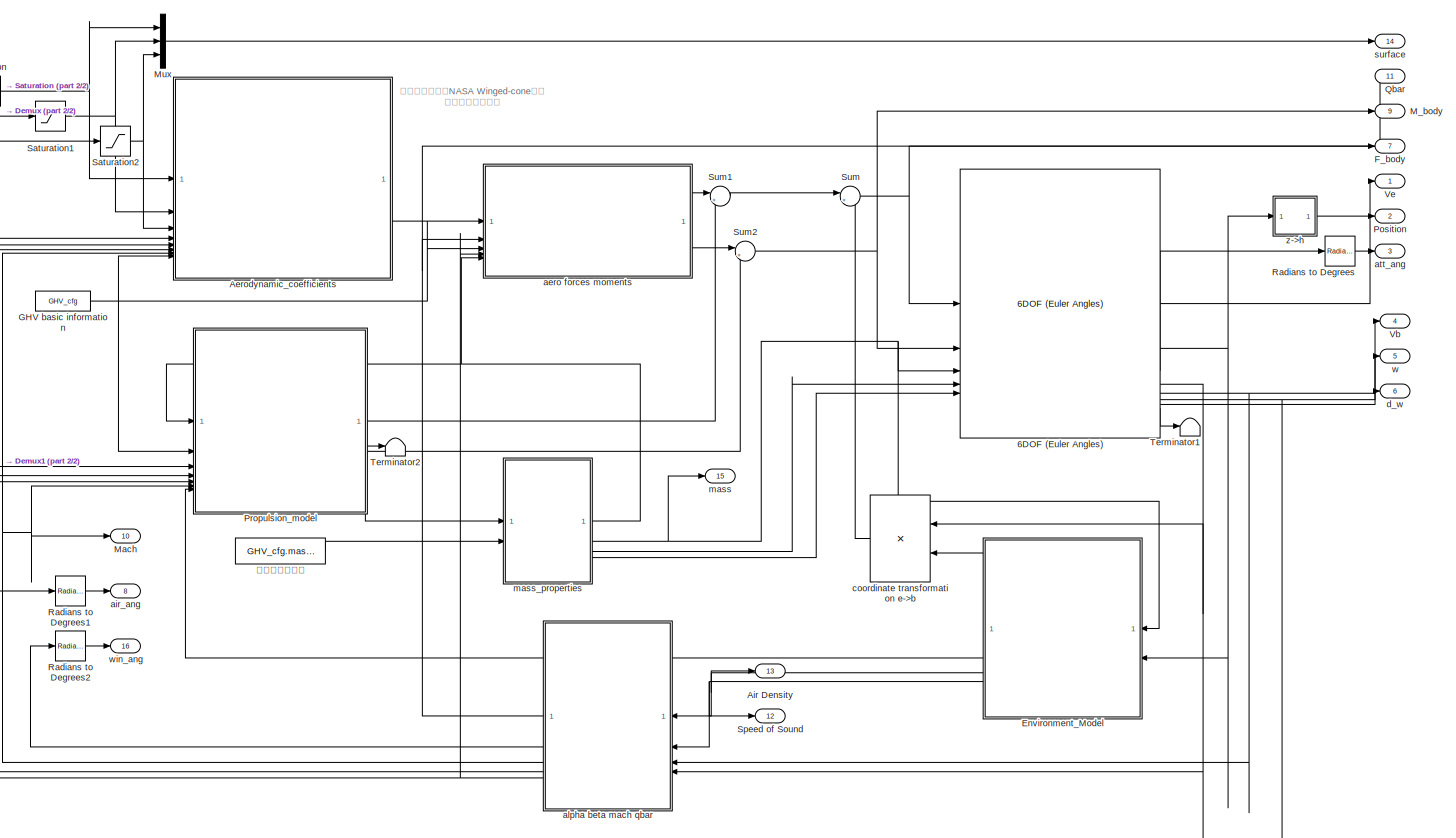
[diagram: root canvas - part 1/2, most of the canvas]
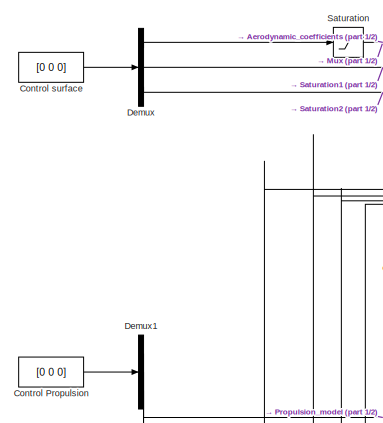
[diagram: root canvas - part 2/2, top left region]
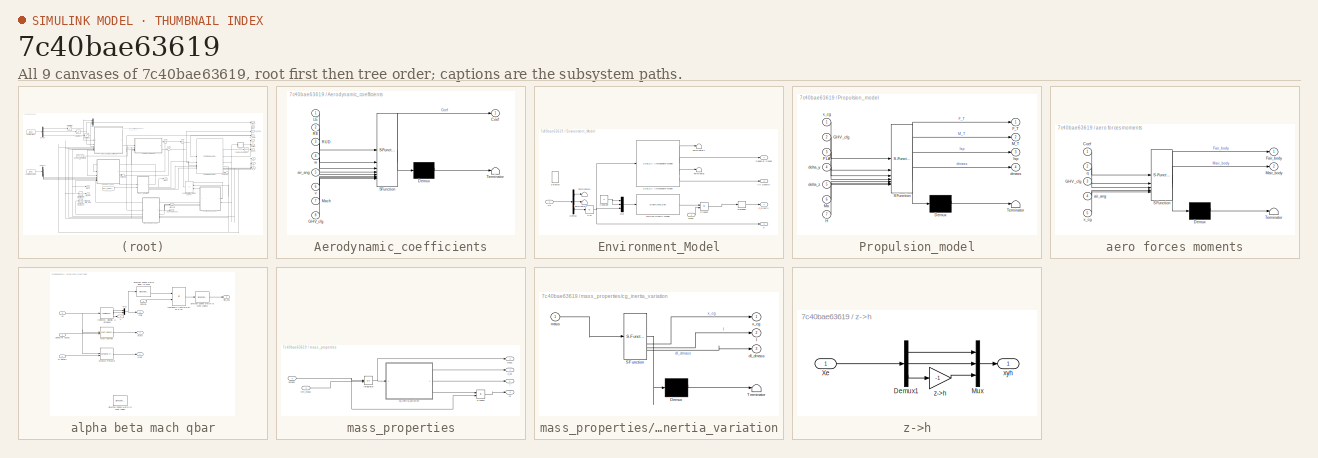
[diagram: thumbnail index - all 9 canvases of the model, root first then tree order]
MODEL slx_7c40bae63619
KIND model
CONFIG AbsTol = auto
CONFIG EnableMultiTasking = off
CONFIG FixedStep = 0.0000001
CONFIG InitFcn = run('init.m')
CONFIG MaxStep = 0.001
CONFIG MinStep = auto
CONFIG RelTol = 1e-3
CONFIG SampleTimeConstraint = Unconstrained
CONFIG SolverName = VariableStepAuto
CONFIG StartTime = 0.0
CONFIG StopTime = 10
BLOCK [Reference] 6DOF (Euler Angles)  REF=shared6dof/6DOF (Euler Angles)
  LibrarySourceBlock = aerolib6dof2/6DOF (Euler Angles)
  SourceBlock = shared6dof/6DOF (Euler Angles)
  SourceType = 6DOF EoM (Body Axis)
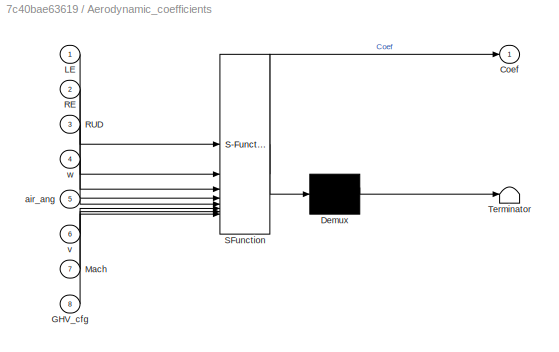
BLOCK [SubSystem] Aerodynamic_coefficients
  ErrorFcn = Stateflow.Translate.translate
  PermitHierarchicalResolution = ExplicitOnly
  SFBlockType = MATLAB Function
  TreatAsAtomicUnit = on
BLOCK [Demux] Aerodynamic_coefficients/ Demux 
  Outputs = 1
BLOCK [S-Function] Aerodynamic_coefficients/ SFunction 
  EnableBusSupport = on
  FunctionName = sf_sfun
  PortCounts = [8 2]
  SFcnIsStateOwnerBlock = off
  SFunctionDeploymentMode = off
  Tag = Stateflow S-Function 2
BLOCK [Terminator] Aerodynamic_coefficients/ Terminator 
BLOCK [Outport] Aerodynamic_coefficients/Coef
BLOCK [Inport] Aerodynamic_coefficients/GHV_cfg
  Port = 8
BLOCK [Inport] Aerodynamic_coefficients/LE
BLOCK [Inport] Aerodynamic_coefficients/Mach
  Port = 7
BLOCK [Inport] Aerodynamic_coefficients/RE
  Port = 2
BLOCK [Inport] Aerodynamic_coefficients/RUD
  Port = 3
BLOCK [Inport] Aerodynamic_coefficients/air_ang
  Port = 5
BLOCK [Inport] Aerodynamic_coefficients/v
  Port = 6
BLOCK [Inport] Aerodynamic_coefficients/w
  Port = 4
BLOCK [Outport] Air Density
  Port = 13
BLOCK [Constant] Control Propulsion
  Value = [0 0 0]
BLOCK [Constant] Control surface
  Value = [0 0 0]
BLOCK [Demux] Demux
  Outputs = 3
BLOCK [Demux] Demux1
  Outputs = 3
BLOCK [SubSystem] Environment_Model
BLOCK [Outport] Environment_Model/Air Density
  Port = 3
BLOCK [Reference] Environment_Model/COESA Atmosphere Model  REF=aerolibatmos2/COESA Atmosphere Model
  SourceBlock = aerolibatmos2/COESA Atmosphere Model
  SourceType = Atmosphere Model
BLOCK [Constant] Environment_Model/Constant
  Value = 0
BLOCK [Demux] Environment_Model/Demux
  Outputs = 3
BLOCK [Outport] Environment_Model/F_Gravity
BLOCK [Mux] Environment_Model/Mux
  DisplayOption = bar
  Inputs = 3
BLOCK [Product] Environment_Model/Product
BLOCK [Reshape] Environment_Model/Reshape
BLOCK [Selector] Environment_Model/Selector
  Commented = on
  IndexOptions = Index vector (dialog)
  Indices = [3]
  InputPortWidth = 3
  OutputSizes = 1
BLOCK [Outport] Environment_Model/Speed of Sound
  Port = 4
BLOCK [Terminator] Environment_Model/Terminator
BLOCK [Terminator] Environment_Model/Terminator1
BLOCK [Terminator] Environment_Model/Terminator2
BLOCK [Terminator] Environment_Model/Terminator3
BLOCK [GravityWGS84] Environment_Model/WGS84 Gravity Model  
  action = None
BLOCK [Inport] Environment_Model/Xe
  Port = 2
BLOCK [Outport] Environment_Model/h
  Port = 2
BLOCK [Inport] Environment_Model/mass
BLOCK [Abs] Environment_Model/z->h
  SaturateOnIntegerOverflow = off
BLOCK [Outport] F_body
  Port = 7
BLOCK [Constant] GHV basic information
  OutDataTypeStr = Bus: slBus1
  Value = GHV_cfg
  VectorParams1D = off
BLOCK [Outport] M_body
  Port = 9
BLOCK [Outport] Mach
  Port = 10
BLOCK [Mux] Mux
  DisplayOption = bar
  Inputs = 3
BLOCK [Outport] Position
  Port = 2
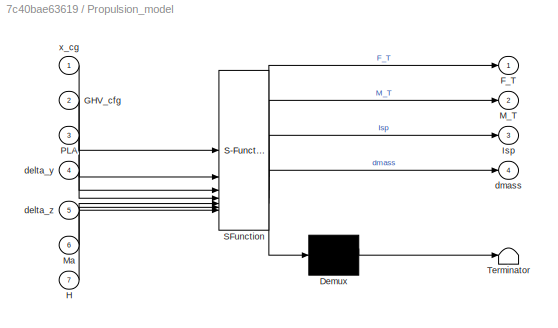
BLOCK [SubSystem] Propulsion_model
  ErrorFcn = Stateflow.Translate.translate
  PermitHierarchicalResolution = ExplicitOnly
  SFBlockType = MATLAB Function
  TreatAsAtomicUnit = on
BLOCK [Demux] Propulsion_model/ Demux 
  Outputs = 1
BLOCK [S-Function] Propulsion_model/ SFunction 
  EnableBusSupport = on
  FunctionName = sf_sfun
  PortCounts = [7 5]
  SFcnIsStateOwnerBlock = off
  SFunctionDeploymentMode = off
  Tag = Stateflow S-Function 1
BLOCK [Terminator] Propulsion_model/ Terminator 
BLOCK [Outport] Propulsion_model/F_T
BLOCK [Inport] Propulsion_model/GHV_cfg
  Port = 2
BLOCK [Inport] Propulsion_model/H
  Port = 7
BLOCK [Outport] Propulsion_model/Isp
  Port = 3
BLOCK [Outport] Propulsion_model/M_T
  Port = 2
BLOCK [Inport] Propulsion_model/Ma
  Port = 6
BLOCK [Inport] Propulsion_model/PLA
  Port = 3
BLOCK [Inport] Propulsion_model/delta_y
  Port = 4
BLOCK [Inport] Propulsion_model/delta_z
  Port = 5
BLOCK [Outport] Propulsion_model/dmass
  Port = 4
BLOCK [Inport] Propulsion_model/x_cg
BLOCK [Outport] Qbar
  Port = 11
BLOCK [Reference] Radians to Degrees  REF=simulink_extras/Transformations/Radians
to Degrees
  SourceBlock = simulink_extras/Transformations/Radians\nto Degrees
  SourceType = RadiansToDegrees
BLOCK [Reference] Radians to Degrees1  REF=simulink_extras/Transformations/Radians
to Degrees
  SourceBlock = simulink_extras/Transformations/Radians\nto Degrees
  SourceType = RadiansToDegrees
BLOCK [Reference] Radians to Degrees2  REF=simulink_extras/Transformations/Radians
to Degrees
  SourceBlock = simulink_extras/Transformations/Radians\nto Degrees
  SourceType = RadiansToDegrees
BLOCK [Saturate] Saturation
  LowerLimit = -30
  UpperLimit = 30
BLOCK [Saturate] Saturation1
  LowerLimit = -30
  UpperLimit = 30
BLOCK [Saturate] Saturation2
  LowerLimit = -30
  UpperLimit = 30
BLOCK [Outport] Speed of Sound
  Port = 12
BLOCK [Sum] Sum
  Inputs = |++
BLOCK [Sum] Sum1
  Inputs = |++
BLOCK [Sum] Sum2
  Inputs = |++
BLOCK [Terminator] Terminator1
BLOCK [Terminator] Terminator2
BLOCK [Outport] Vb
  Port = 4
BLOCK [Outport] Ve
BLOCK [SubSystem] aero forces moments
  ErrorFcn = Stateflow.Translate.translate
  PermitHierarchicalResolution = ExplicitOnly
  SFBlockType = MATLAB Function
  TreatAsAtomicUnit = on
BLOCK [Demux] aero forces moments/ Demux 
  Outputs = 1
BLOCK [S-Function] aero forces moments/ SFunction 
  EnableBusSupport = on
  FunctionName = sf_sfun
  PortCounts = [5 3]
  SFcnIsStateOwnerBlock = off
  SFunctionDeploymentMode = off
  Tag = Stateflow S-Function 4
BLOCK [Terminator] aero forces moments/ Terminator 
BLOCK [Inport] aero forces moments/Coef
BLOCK [Outport] aero forces moments/Fair_body
BLOCK [Inport] aero forces moments/GHV_cfg
  Port = 3
BLOCK [Outport] aero forces moments/Mair_body
  Port = 2
BLOCK [Inport] aero forces moments/air_ang
  Port = 4
BLOCK [Inport] aero forces moments/q
  Port = 2
BLOCK [Inport] aero forces moments/x_cg
  Port = 5
BLOCK [Outport] air_ang
  Port = 8
BLOCK [SubSystem] alpha beta mach qbar
BLOCK [Inport] alpha beta mach qbar/Air Density
BLOCK [Inport] alpha beta mach qbar/DCMbe
  Port = 4
BLOCK [Reference] alpha beta mach qbar/Direction Cosine Matrix Body to Wind  REF=aerolibtransform2/Direction Cosine Matrix
Body to Wind
  SourceBlock = aerolibtransform2/Direction Cosine Matrix\nBody to Wind
  SourceType = DCM Body to Wind
BLOCK [Reference] alpha beta mach qbar/Direction Cosine Matrix to Wind Angles  REF=aerolibtransform2/Direction Cosine Matrix to
Wind Angles
  SourceBlock = aerolibtransform2/Direction Cosine Matrix to\nWind Angles
  SourceType = DCM2Wind
BLOCK [Reference] alpha beta mach qbar/Direction Cosine Matrix to Wind Angles1  REF=aerolibtransform2/Direction Cosine Matrix to
Wind Angles
  SourceBlock = aerolibtransform2/Direction Cosine Matrix to\nWind Angles
  SourceType = DCM2Wind
BLOCK [Reference] alpha beta mach qbar/Dynamic Pressure  REF=aerolibasang/Dynamic Pressure
  SourceBlock = aerolibasang/Dynamic Pressure
  SourceType = Dynamic Pressure
BLOCK [Outport] alpha beta mach qbar/Incid
  Port = 5
BLOCK [Reference] alpha beta mach qbar/Incidence, Sideslip, & Airspeed  REF=aerolibasang/Incidence, Sideslip,
& Airspeed
  SourceBlock = aerolibasang/Incidence, Sideslip,\n& Airspeed
  SourceType = Incidence,Sideslip,&Airspeed
BLOCK [Outport] alpha beta mach qbar/Mach
  Port = 3
BLOCK [Reference] alpha beta mach qbar/Mach Number  REF=aerolibasang/Mach Number
  SourceBlock = aerolibasang/Mach Number
  SourceType = Mach Number
BLOCK [Mux] alpha beta mach qbar/Mux
  DisplayOption = bar
  Inputs = 2
BLOCK [Outport] alpha beta mach qbar/Qbar
BLOCK [Inport] alpha beta mach qbar/Speed of Sound
  Port = 2
BLOCK [Outport] alpha beta mach qbar/V
  Port = 4
BLOCK [Inport] alpha beta mach qbar/Vb
  Port = 3
BLOCK [Product] alpha beta mach qbar/coordinate transformation e->w
  Multiplication = Matrix(*)
BLOCK [Outport] alpha beta mach qbar/win_ang
  Port = 2
BLOCK [Outport] att_ang
  Port = 3
BLOCK [Product] coordinate transformation e->b
  Multiplication = Matrix(*)
BLOCK [Outport] d_w
  Port = 6
BLOCK [Outport] mass
  Port = 15
BLOCK [SubSystem] mass_properties
BLOCK [Outport] mass_properties/I
  Port = 4
BLOCK [Integrator] mass_properties/Integrator
  InitialConditionSource = external
BLOCK [Product] mass_properties/Product
BLOCK [SubSystem] mass_properties/cg_inertia_variation
  ErrorFcn = Stateflow.Translate.translate
  PermitHierarchicalResolution = ExplicitOnly
  SFBlockType = MATLAB Function
  TreatAsAtomicUnit = on
BLOCK [Demux] mass_properties/cg_inertia_variation/ Demux 
  Outputs = 1
BLOCK [S-Function] mass_properties/cg_inertia_variation/ SFunction 
  EnableBusSupport = on
  FunctionName = sf_sfun
  PortCounts = [1 4]
  SFcnIsStateOwnerBlock = off
  SFunctionDeploymentMode = off
  Tag = Stateflow S-Function 3
BLOCK [Terminator] mass_properties/cg_inertia_variation/ Terminator 
BLOCK [Outport] mass_properties/cg_inertia_variation/I
  Port = 2
BLOCK [Outport] mass_properties/cg_inertia_variation/dI_dmass
  Port = 3
BLOCK [Inport] mass_properties/cg_inertia_variation/mass
BLOCK [Outport] mass_properties/cg_inertia_variation/x_cg
BLOCK [Outport] mass_properties/dI
  Port = 3
BLOCK [Inport] mass_properties/dmass
BLOCK [Inport] mass_properties/init_mass
  Port = 2
BLOCK [Outport] mass_properties/mass
  Port = 2
BLOCK [Outport] mass_properties/x_cg
BLOCK [Outport] surface
  Port = 14
BLOCK [Outport] w
  Port = 5
BLOCK [Outport] win_ang
  Port = 16
BLOCK [SubSystem] z->h
BLOCK [Demux] z->h/Demux1
  Outputs = 3
BLOCK [Mux] z->h/Mux
  DisplayOption = bar
  Inputs = 3
BLOCK [Inport] z->h/Xe
BLOCK [Outport] z->h/xyh
BLOCK [Gain] z->h/z->h
  Gain = -1
BLOCK [Constant] 飞行器初始质量
  Value = GHV_cfg.mass_full
ANNOTATION (root): 高超声速飞行器NASA Winged-cone模型 六自由度仿真平台
LINE 6DOF (Euler Angles):1 -> Ve:1
NET 6DOF (Euler Angles):2 -> Environment_Model:2, z->h:1
LINE 6DOF (Euler Angles):3 -> Radians to Degrees:1
NET 6DOF (Euler Angles):4 -> alpha beta mach qbar:4, coordinate transformation e->b:1
NET 6DOF (Euler Angles):5 -> Vb:1, alpha beta mach qbar:3
NET 6DOF (Euler Angles):6 -> Aerodynamic_coefficients:4, w:1
LINE 6DOF (Euler Angles):7 -> d_w:1
LINE 6DOF (Euler Angles):8 -> Terminator1:1
LINE Aerodynamic_coefficients:1 -> aero forces moments:1
LINE Control Propulsion:1 -> Demux1:1
LINE Control surface:1 -> Demux:1
LINE Demux1:1 -> Propulsion_model:3
LINE Demux1:2 -> Propulsion_model:4
LINE Demux1:3 -> Propulsion_model:5
LINE Demux:1 -> Saturation:1
LINE Demux:2 -> Saturation1:1
LINE Demux:3 -> Saturation2:1
LINE Environment_Model/COESA Atmosphere Model:1 -> Environment_Model/Terminator1:1
LINE Environment_Model/COESA Atmosphere Model:2 -> Environment_Model/Speed of Sound:1
LINE Environment_Model/COESA Atmosphere Model:3 -> Environment_Model/Terminator:1
LINE Environment_Model/COESA Atmosphere Model:4 -> Environment_Model/Air Density:1
NET Environment_Model/Constant:1 -> Environment_Model/Mux:1, Environment_Model/Mux:2
LINE Environment_Model/Demux:1 -> Environment_Model/Terminator3:1
LINE Environment_Model/Demux:2 -> Environment_Model/Terminator2:1
LINE Environment_Model/Demux:3 -> Environment_Model/z->h:1
LINE Environment_Model/Mux:1 -> Environment_Model/WGS84 Gravity Model  :1
LINE Environment_Model/Product:1 -> Environment_Model/Reshape:1
LINE Environment_Model/Reshape:1 -> Environment_Model/F_Gravity:1
LINE Environment_Model/WGS84 Gravity Model  :1 -> Environment_Model/Product:1
LINE Environment_Model/Xe:1 -> Environment_Model/Demux:1
LINE Environment_Model/mass:1 -> Environment_Model/Product:2
NET Environment_Model/z->h:1 -> Environment_Model/COESA Atmosphere Model:1, Environment_Model/Mux:3, Environment_Model/h:1
LINE Environment_Model:1 -> coordinate transformation e->b:2
LINE Environment_Model:2 -> Propulsion_model:7
NET Environment_Model:3 -> Air Density:1, alpha beta mach qbar:1
NET Environment_Model:4 -> Speed of Sound:1, alpha beta mach qbar:2
NET GHV basic information:1 -> Aerodynamic_coefficients:8, Propulsion_model:2, aero forces moments:3
LINE Mux:1 -> surface:1
LINE Propulsion_model:1 -> Sum1:2
LINE Propulsion_model:2 -> Sum2:2
LINE Propulsion_model:3 -> Terminator2:1
LINE Propulsion_model:4 -> mass_properties:1
LINE Radians to Degrees1:1 -> air_ang:1
LINE Radians to Degrees2:1 -> win_ang:1
LINE Radians to Degrees:1 -> att_ang:1
NET Saturation1:1 -> Aerodynamic_coefficients:2, Mux:2
NET Saturation2:1 -> Aerodynamic_coefficients:3, Mux:3
NET Saturation:1 -> Aerodynamic_coefficients:1, Mux:1
LINE Sum1:1 -> Sum:1
NET Sum2:1 -> 6DOF (Euler Angles):2, M_body:1
NET Sum:1 -> 6DOF (Euler Angles):1, F_body:1
LINE aero forces moments:1 -> Sum1:1
LINE aero forces moments:2 -> Sum2:1
LINE alpha beta mach qbar/Air Density:1 -> alpha beta mach qbar/Dynamic Pressure:2
LINE alpha beta mach qbar/DCMbe:1 -> alpha beta mach qbar/coordinate transformation e->w:2
LINE alpha beta mach qbar/Direction Cosine Matrix Body to Wind:1 -> alpha beta mach qbar/coordinate transformation e->w:1
LINE alpha beta mach qbar/Direction Cosine Matrix to Wind Angles1:1 -> alpha beta mach qbar/win_ang:1
LINE alpha beta mach qbar/Dynamic Pressure:1 -> alpha beta mach qbar/Qbar:1
LINE alpha beta mach qbar/Incidence, Sideslip, & Airspeed:1 -> alpha beta mach qbar/Mux:1
LINE alpha beta mach qbar/Incidence, Sideslip, & Airspeed:2 -> alpha beta mach qbar/Mux:2
LINE alpha beta mach qbar/Incidence, Sideslip, & Airspeed:3 -> alpha beta mach qbar/V:1
LINE alpha beta mach qbar/Mach Number:1 -> alpha beta mach qbar/Mach:1
NET alpha beta mach qbar/Mux:1 -> alpha beta mach qbar/Direction Cosine Matrix Body to Wind:1, alpha beta mach qbar/Incid:1
LINE alpha beta mach qbar/Speed of Sound:1 -> alpha beta mach qbar/Mach Number:2
NET alpha beta mach qbar/Vb:1 -> alpha beta mach qbar/Dynamic Pressure:1, alpha beta mach qbar/Incidence, Sideslip, & Airspeed:1, alpha beta mach qbar/Mach Number:1
LINE alpha beta mach qbar/coordinate transformation e->w:1 -> alpha beta mach qbar/Direction Cosine Matrix to Wind Angles1:1
NET alpha beta mach qbar:1 -> Qbar:1, aero forces moments:2
LINE alpha beta mach qbar:2 -> Radians to Degrees2:1
NET alpha beta mach qbar:3 -> Aerodynamic_coefficients:7, Mach:1, Propulsion_model:6
LINE alpha beta mach qbar:4 -> Aerodynamic_coefficients:6
NET alpha beta mach qbar:5 -> Aerodynamic_coefficients:5, Radians to Degrees1:1, aero forces moments:4
LINE coordinate transformation e->b:1 -> Sum:2
NET mass_properties/Integrator:1 -> mass_properties/cg_inertia_variation:1, mass_properties/mass:1
LINE mass_properties/Product:1 -> mass_properties/dI:1
LINE mass_properties/cg_inertia_variation:1 -> mass_properties/x_cg:1
LINE mass_properties/cg_inertia_variation:2 -> mass_properties/I:1
LINE mass_properties/cg_inertia_variation:3 -> mass_properties/Product:1
NET mass_properties/dmass:1 -> mass_properties/Integrator:1, mass_properties/Product:2
LINE mass_properties/init_mass:1 -> mass_properties/Integrator:2
NET mass_properties:1 -> Propulsion_model:1, aero forces moments:5
NET mass_properties:2 -> 6DOF (Euler Angles):3, Environment_Model:1, mass:1
LINE mass_properties:3 -> 6DOF (Euler Angles):4
LINE mass_properties:4 -> 6DOF (Euler Angles):5
LINE z->h/Demux1:1 -> z->h/Mux:1
LINE z->h/Demux1:2 -> z->h/Mux:2
LINE z->h/Demux1:3 -> z->h/z->h:1
LINE z->h/Mux:1 -> z->h/xyh:1
LINE z->h/Xe:1 -> z->h/Demux1:1
LINE z->h/z->h:1 -> z->h/Mux:3
LINE z->h:1 -> Position:1
LINE 飞行器初始质量:1 -> mass_properties:2
note: NET lines group one-source signal fan-out (src -> all destinations, sorted); 1:1 wires keep LINE
CHART Propulsion_model states=1 transitions=1
  STATE_LABEL 'eML_blk_kernel()'
  STATE_LABEL 'SCRIPT:\nfunction  [F_T, M_T, Isp, dmass] = S_Propulsion_model(x_cg, GHV_cfg, PLA, delta_y, delta_z, Ma, H)\n    F_T = zeros(3, 1); %#ok<PREALL>\n    M_T = zeros(3, 1); %#ok<PREALL>\n   [F_T, M_T, Isp, dmass] = Propulsion_model(PLA, H, Ma, delta_y, delta_z, GHV_cfg, x_cg);\n\nend'
CHART Aerodynamic_coefficients states=1 transitions=1
  STATE_LABEL 'eML_blk_kernel()'
  STATE_LABEL 'SCRIPT:\nfunction Coef = S_Aerodynamic_coefficients(LE, RE, RUD, w, air_ang,v, Mach, GHV_cfg)\n    Coef = zeros(6, 1);\n    Coef = Aerodynamic_coefficients(LE, RE, RUD, air_ang, v, w, Mach, GHV_cfg);\n\nend\n'
CHART mass_properties/cg_inertia_variation states=1 transitions=1
  STATE_LABEL 'eML_blk_kernel()'
  STATE_LABEL 'SCRIPT:\nfunction [x_cg, I, dI_dmass] = S_cg_inertia_variation(mass)\n\n     [x_cg, I, dI_dmass] = cg_inertia_variation(mass);\n     \nend\n'
CHART aero forces moments states=1 transitions=1
  STATE_LABEL 'eML_blk_kernel()'
  STATE_LABEL 'SCRIPT:\nfunction [Fair_body, Mair_body] = S_aero_forces_moments(Coef, q, GHV_cfg, air_ang, x_cg)\n\n    Fair_body = zeros(3, 1); %#ok<PREALL>\n    Mair_body = zeros(3, 1); %#ok<PREALL>\n    [Fair_body, Mair_body] = aero_forces_moments(Coef, q, GHV_cfg, x_cg, air_ang);\n\nend'
CHART  states=0 transitions=0
CHART  states=0 transitions=0
CHART  states=0 transitions=0
CHART  states=0 transitions=0
